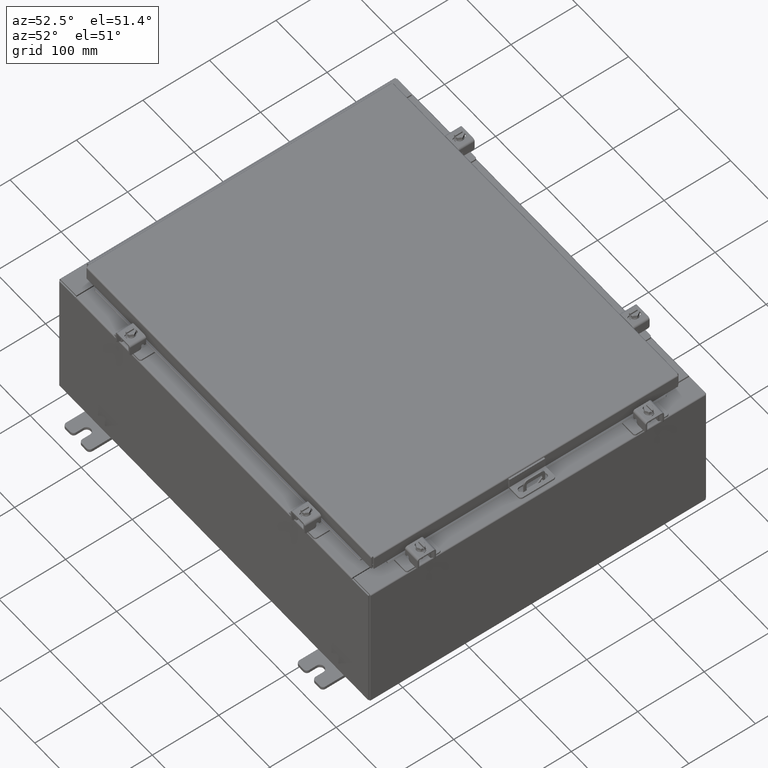
[diagram: clean part render]
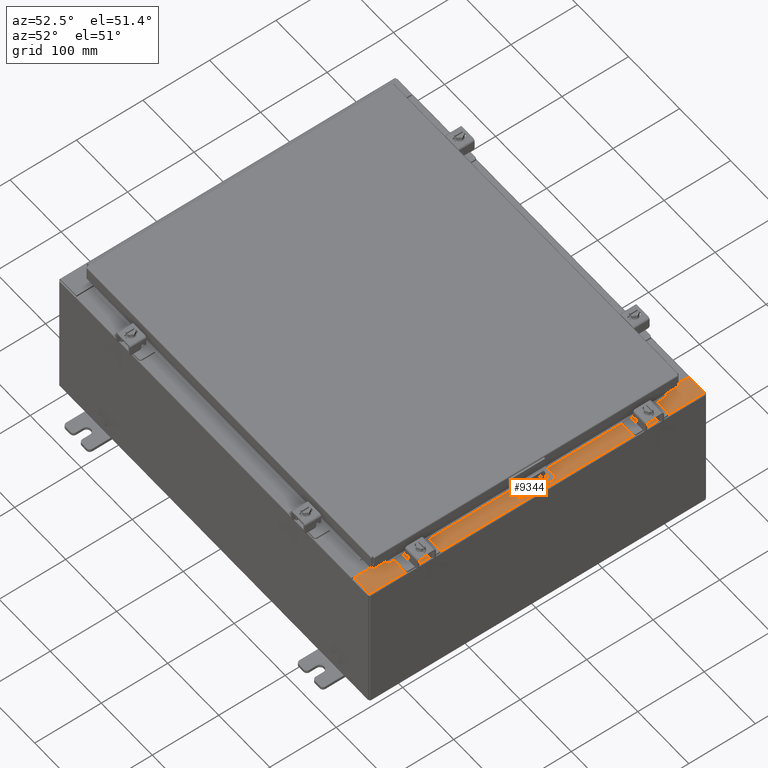
[diagram: same view with one face highlighted and labeled with its STEP entity id]
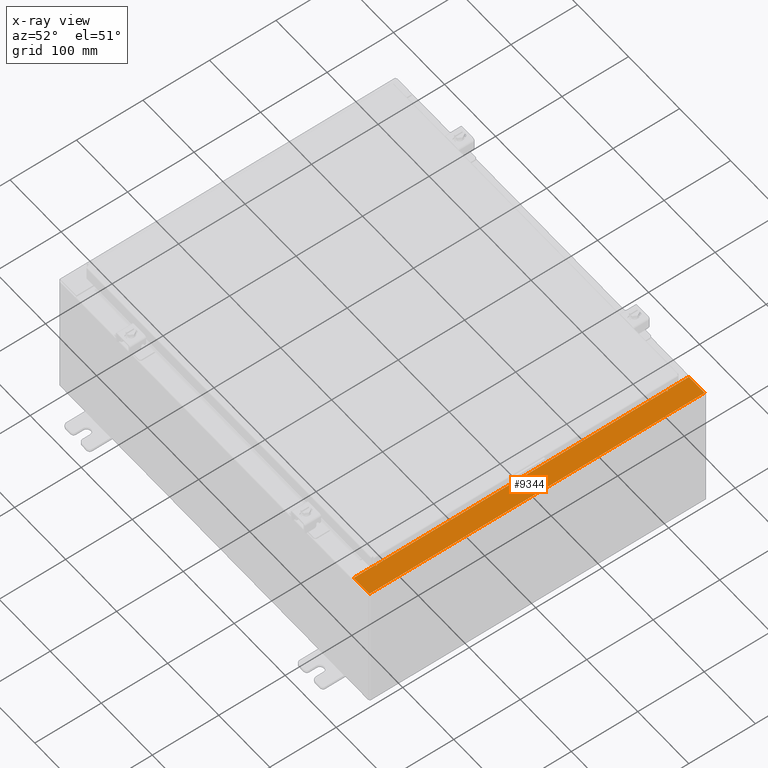
[diagram: x-ray of the same camera — body ghosted, the highlighted face saturated]
A machine part, auxiliary view. The second image highlights one B-rep face of the part: STEP entity #9344.
The next image is the same camera in x-ray: the body ghosted, the highlighted face saturated — about 0% of this face is hidden behind the body in this view.
In plain terms, the highlighted planar face has unit normal (-0, 0, -1).
Its self-contained STEP definition (entity closure, byte-faithful):
#75 = ORIENTED_EDGE ( 'NONE', *, *, #11720, .T. ) ;
#207 = DIRECTION ( 'NONE',  ( 1.000000000000000000, 2.170286390199955400E-014, 2.170286390199955400E-014 ) ) ;
#378 = CARTESIAN_POINT ( 'NONE',  ( 10.75005000000003000, 8.612424999999996400, 7.925300000000009800 ) ) ;
#389 = DIRECTION ( 'NONE',  ( -1.000000000000000000, 0.0000000000000000000, 7.132762385546384700E-015 ) ) ;
#412 = EDGE_CURVE ( 'NONE', #21368, #1593, #26907, .T. ) ;
#1574 = CARTESIAN_POINT ( 'NONE',  ( 10.69970000000002800, 1.177997802698536000E-015, 7.925300000000008900 ) ) ;
#1593 = VERTEX_POINT ( 'NONE', #6583 ) ;
#1994 = ORIENTED_EDGE ( 'NONE', *, *, #6116, .T. ) ;
#2017 = VERTEX_POINT ( 'NONE', #27142 ) ;
#2468 = DIRECTION ( 'NONE',  ( 1.100963394019027800E-016, -1.000000000000000000, -7.852910284722405000E-031 ) ) ;
#2660 = DIRECTION ( 'NONE',  ( 1.000000000000000000, 0.0000000000000000000, 0.0000000000000000000 ) ) ;
#2747 = EDGE_CURVE ( 'NONE', #16997, #22691, #4700, .T. ) ;
#2788 = VERTEX_POINT ( 'NONE', #11496 ) ;
#2970 = EDGE_LOOP ( 'NONE', ( #5742, #75, #25552, #5101, #28669, #1994, #25178, #5647, #26071, #28404, #4489, #12212 ) ) ;
#3510 = EDGE_CURVE ( 'NONE', #7639, #21368, #21046, .T. ) ;
#3798 = VECTOR ( 'NONE', #22730, 39.37007874015748100 ) ;
#4053 = DIRECTION ( 'NONE',  ( -0.0000000000000000000, -1.000000000000000000, -0.0000000000000000000 ) ) ;
#4175 = VECTOR ( 'NONE', #6122, 39.37007874015748100 ) ;
#4489 = ORIENTED_EDGE ( 'NONE', *, *, #412, .F. ) ;
#4522 = LINE ( 'NONE', #9118, #3798 ) ;
#4574 = VECTOR ( 'NONE', #12558, 39.37007874015748100 ) ;
#4700 = LINE ( 'NONE', #13420, #28215 ) ;
#4801 = VECTOR ( 'NONE', #4053, 39.37007874015748100 ) ;
#4833 = LINE ( 'NONE', #16051, #10184 ) ;
#5101 = ORIENTED_EDGE ( 'NONE', *, *, #11006, .F. ) ;
#5647 = ORIENTED_EDGE ( 'NONE', *, *, #23379, .F. ) ;
#5742 = ORIENTED_EDGE ( 'NONE', *, *, #10538, .F. ) ;
#6051 = AXIS2_PLACEMENT_3D ( 'NONE', #23205, #9585, #25498 ) ;
#6116 = EDGE_CURVE ( 'NONE', #20684, #22691, #28406, .T. ) ;
#6122 = DIRECTION ( 'NONE',  ( 1.100963394019027800E-016, -1.000000000000000000, -7.852910284722405000E-031 ) ) ;
#6583 = CARTESIAN_POINT ( 'NONE',  ( 10.71270000000003000, -8.593750000000003600, 7.925300000000009800 ) ) ;
#7639 = VERTEX_POINT ( 'NONE', #16441 ) ;
#7860 = LINE ( 'NONE', #10186, #13167 ) ;
#8029 = EDGE_CURVE ( 'NONE', #2788, #20684, #22414, .T. ) ;
#8219 = CARTESIAN_POINT ( 'NONE',  ( 10.69970000000002800, 9.925299999999992900, 7.925300000000008900 ) ) ;
#9118 = CARTESIAN_POINT ( 'NONE',  ( 5.679009539018295300E-014, -9.925300000000001800, 7.925300000000085300 ) ) ;
#9141 = VERTEX_POINT ( 'NONE', #20078 ) ;
#9344 = ADVANCED_FACE ( 'NONE', ( #22699 ), #27559, .F. ) ;
#9585 = DIRECTION ( 'NONE',  ( 7.132762385546384700E-015, 0.0000000000000000000, 1.000000000000000000 ) ) ;
#9838 = EDGE_CURVE ( 'NONE', #27319, #2017, #4522, .T. ) ;
#10184 = VECTOR ( 'NONE', #207, 39.37007874015748100 ) ;
#10186 = CARTESIAN_POINT ( 'NONE',  ( 10.71270000000003000, -8.593750000000003600, 7.925300000000009800 ) ) ;
#10538 = EDGE_CURVE ( 'NONE', #22071, #7639, #4833, .T. ) ;
#10851 = LINE ( 'NONE', #26763, #4801 ) ;
#11006 = EDGE_CURVE ( 'NONE', #2788, #2017, #10851, .T. ) ;
#11121 = CARTESIAN_POINT ( 'NONE',  ( 5.679009539018295300E-014, 9.925299999999996500, 7.925300000000085300 ) ) ;
#11175 = VECTOR ( 'NONE', #2468, 39.37007874015748100 ) ;
#11335 = LINE ( 'NONE', #26175, #4574 ) ;
#11496 = CARTESIAN_POINT ( 'NONE',  ( 11.91230000000002700, 9.925299999999991100, 7.925300000000000000 ) ) ;
#11720 = EDGE_CURVE ( 'NONE', #22071, #27319, #13314, .T. ) ;
#12212 = ORIENTED_EDGE ( 'NONE', *, *, #3510, .F. ) ;
#12558 = DIRECTION ( 'NONE',  ( 1.000000000000000000, 0.0000000000000000000, 0.0000000000000000000 ) ) ;
#13029 = CARTESIAN_POINT ( 'NONE',  ( 10.75005000000003000, 8.593749999999994700, 7.925300000000008900 ) ) ;
#13167 = VECTOR ( 'NONE', #21542, 39.37007874015748100 ) ;
#13192 = CARTESIAN_POINT ( 'NONE',  ( 10.69970000000002800, -8.631100000000003500, 7.925300000000008900 ) ) ;
#13314 = LINE ( 'NONE', #22850, #11175 ) ;
#13407 = DIRECTION ( 'NONE',  ( -1.000000000000000000, 0.0000000000000000000, 7.132762385546384700E-015 ) ) ;
#13420 = CARTESIAN_POINT ( 'NONE',  ( 10.75005000000003000, 8.631099999999996400, 7.925300000000009800 ) ) ;
#14030 = DIRECTION ( 'NONE',  ( -7.132762385546384700E-015, 0.0000000000000000000, -1.000000000000000000 ) ) ;
#14102 = VECTOR ( 'NONE', #29164, 39.37007874015748100 ) ;
#16051 = CARTESIAN_POINT ( 'NONE',  ( 10.69970000000002800, -8.631100000000003500, 7.925300000000008900 ) ) ;
#16303 = DIRECTION ( 'NONE',  ( 7.132762385546384700E-015, 0.0000000000000000000, 1.000000000000000000 ) ) ;
#16441 = CARTESIAN_POINT ( 'NONE',  ( 10.75005000000003000, -8.631100000000003500, 7.925300000000008900 ) ) ;
#16862 = AXIS2_PLACEMENT_3D ( 'NONE', #27656, #14030, #389 ) ;
#16997 = VERTEX_POINT ( 'NONE', #18279 ) ;
#17604 = CARTESIAN_POINT ( 'NONE',  ( 10.69970000000003000, -9.925300000000001800, 7.925300000000008900 ) ) ;
#17840 = AXIS2_PLACEMENT_3D ( 'NONE', #378, #16303, #2660 ) ;
#18279 = CARTESIAN_POINT ( 'NONE',  ( 10.75005000000003000, 8.631099999999996400, 7.925300000000008900 ) ) ;
#20078 = CARTESIAN_POINT ( 'NONE',  ( 10.71270000000003000, 8.593749999999996400, 7.925300000000009800 ) ) ;
#20684 = VERTEX_POINT ( 'NONE', #8219 ) ;
#21046 = CIRCLE ( 'NONE', #6051, 0.01867499999999949400 ) ;
#21368 = VERTEX_POINT ( 'NONE', #26482 ) ;
#21423 = VERTEX_POINT ( 'NONE', #13029 ) ;
#21542 = DIRECTION ( 'NONE',  ( -0.0000000000000000000, 1.000000000000000000, -0.0000000000000000000 ) ) ;
#21731 = VECTOR ( 'NONE', #13407, 39.37007874015748100 ) ;
#22071 = VERTEX_POINT ( 'NONE', #13192 ) ;
#22414 = LINE ( 'NONE', #11121, #21731 ) ;
#22691 = VERTEX_POINT ( 'NONE', #27374 ) ;
#22699 = FACE_OUTER_BOUND ( 'NONE', #2970, .T. ) ;
#22730 = DIRECTION ( 'NONE',  ( 1.000000000000000000, 0.0000000000000000000, -7.132762385546384700E-015 ) ) ;
#22850 = CARTESIAN_POINT ( 'NONE',  ( 10.69970000000002800, 1.177997802698536000E-015, 7.925300000000008900 ) ) ;
#23010 = EDGE_CURVE ( 'NONE', #9141, #21423, #11335, .T. ) ;
#23205 = CARTESIAN_POINT ( 'NONE',  ( 10.75005000000003000, -8.612425000000001800, 7.925300000000009800 ) ) ;
#23379 = EDGE_CURVE ( 'NONE', #21423, #16997, #24849, .T. ) ;
#24586 = CARTESIAN_POINT ( 'NONE',  ( 10.75005000000003000, -8.593750000000003600, 7.925300000000009800 ) ) ;
#24849 = CIRCLE ( 'NONE', #17840, 0.01867499999999949400 ) ;
#24864 = DIRECTION ( 'NONE',  ( -1.000000000000000000, 2.170286390199955400E-014, -2.170286390199955400E-014 ) ) ;
#25178 = ORIENTED_EDGE ( 'NONE', *, *, #2747, .F. ) ;
#25498 = DIRECTION ( 'NONE',  ( 1.000000000000000000, 0.0000000000000000000, 0.0000000000000000000 ) ) ;
#25552 = ORIENTED_EDGE ( 'NONE', *, *, #9838, .T. ) ;
#26071 = ORIENTED_EDGE ( 'NONE', *, *, #23010, .F. ) ;
#26175 = CARTESIAN_POINT ( 'NONE',  ( 10.71270000000003000, 8.593749999999996400, 7.925300000000009800 ) ) ;
#26482 = CARTESIAN_POINT ( 'NONE',  ( 10.75005000000003000, -8.593750000000003600, 7.925300000000008900 ) ) ;
#26763 = CARTESIAN_POINT ( 'NONE',  ( 11.91230000000002700, -9.925300000000001800, 7.925300000000000000 ) ) ;
#26907 = LINE ( 'NONE', #24586, #14102 ) ;
#27142 = CARTESIAN_POINT ( 'NONE',  ( 11.91230000000002700, -9.925300000000001800, 7.925300000000000000 ) ) ;
#27319 = VERTEX_POINT ( 'NONE', #17604 ) ;
#27374 = CARTESIAN_POINT ( 'NONE',  ( 10.69970000000002800, 8.631099999999996400, 7.925300000000008900 ) ) ;
#27559 = PLANE ( 'NONE',  #16862 ) ;
#27656 = CARTESIAN_POINT ( 'NONE',  ( 5.679009539018295300E-014, 0.0000000000000000000, 7.925300000000085300 ) ) ;
#28215 = VECTOR ( 'NONE', #24864, 39.37007874015748100 ) ;
#28404 = ORIENTED_EDGE ( 'NONE', *, *, #28772, .F. ) ;
#28406 = LINE ( 'NONE', #1574, #4175 ) ;
#28669 = ORIENTED_EDGE ( 'NONE', *, *, #8029, .T. ) ;
#28772 = EDGE_CURVE ( 'NONE', #1593, #9141, #7860, .T. ) ;
#29164 = DIRECTION ( 'NONE',  ( -1.000000000000000000, 0.0000000000000000000, 0.0000000000000000000 ) ) ;